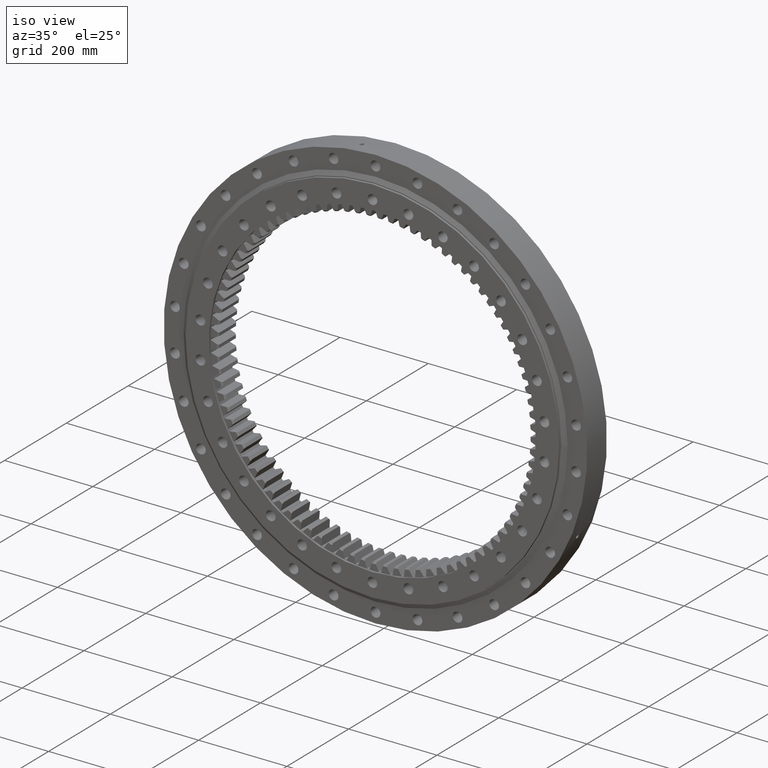
[diagram: clean part render]
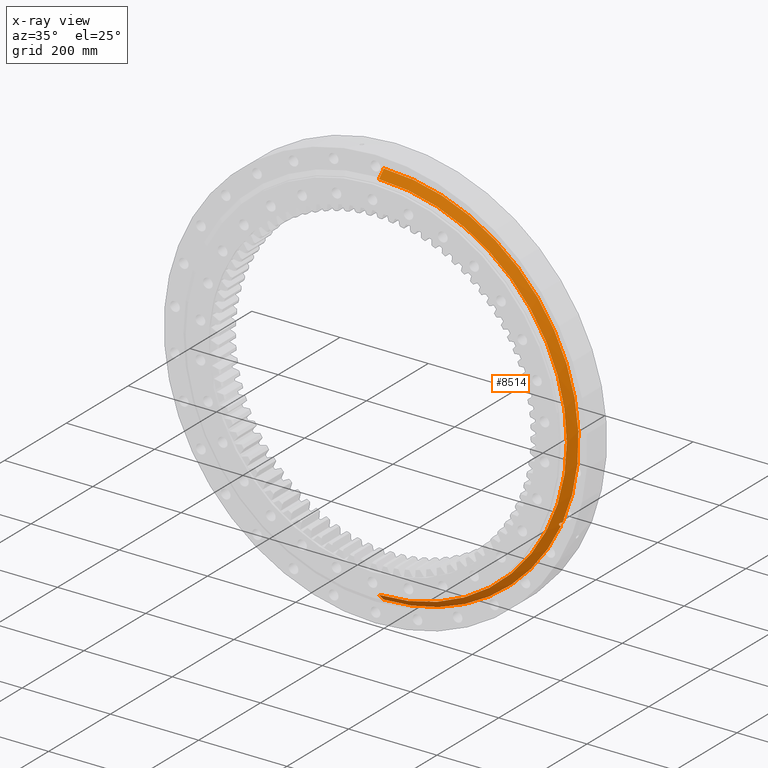
[diagram: x-ray — body ghosted, one internal face saturated and labeled with its STEP entity id]
A machine part, iso view, then the same camera in x-ray: the body is ghosted and one INTERNAL B-rep face — a face not visible from any outside direction — is saturated and labeled: STEP entity #8514.
In plain terms, the highlighted conical surface has half-angle 45 deg.
Its self-contained STEP definition (entity closure, byte-faithful):
#472 = EDGE_CURVE ( 'NONE', #6118, #21127, #11257, .T. ) ;
#822 = CARTESIAN_POINT ( 'NONE',  ( 404.6547146384413600, -1.153293002785385800, -175.3769284562168000 ) ) ;
#910 = CARTESIAN_POINT ( 'NONE',  ( 400.1321444029305200, -4.458488786449216000, -177.4609047056047200 ) ) ;
#940 = CIRCLE ( 'NONE', #4618, 425.7500000000000000 ) ;
#998 = CARTESIAN_POINT ( 'NONE',  ( 400.1736141557348100, -2.425623460447036400, -182.3265223221968100 ) ) ;
#1629 = ORIENTED_EDGE ( 'NONE', *, *, #23079, .F. ) ;
#2088 = CONICAL_SURFACE ( 'NONE', #22541, 425.7500000000000000, 0.7853981633974438400 ) ;
#2341 = CARTESIAN_POINT ( 'NONE',  ( -2.802618644233604100E-014, -16.42766952966373100, 425.7500000000000000 ) ) ;
#2840 = CARTESIAN_POINT ( 'NONE',  ( 403.4993218910917700, -2.220896289219046700, -175.3575497079782500 ) ) ;
#2923 = CARTESIAN_POINT ( 'NONE',  ( 399.9035502386784600, -4.499909138651085900, -177.8735426785048900 ) ) ;
#3004 = CARTESIAN_POINT ( 'NONE',  ( 400.6058844917232000, -1.801684949680406400, -182.8823218753153700 ) ) ;
#3398 = VERTEX_POINT ( 'NONE', #20595 ) ;
#4215 = DIRECTION ( 'NONE',  ( -1.173697223544192200E-016, 1.000000000000000000, 3.494217355385783800E-017 ) ) ;
#4602 = CARTESIAN_POINT ( 'NONE',  ( 2.450653917268358000E-014, -0.7071067811865395800, 441.4705627484770500 ) ) ;
#4618 = AXIS2_PLACEMENT_3D ( 'NONE', #19093, #7198, #21075 ) ;
#4852 = CARTESIAN_POINT ( 'NONE',  ( 402.7816439991041200, -2.826927390752906900, -175.4880106774956200 ) ) ;
#4855 = DIRECTION ( 'NONE',  ( -1.303362207392472500E-016, 0.7071067811865506800, 0.7071067811865443500 ) ) ;
#4940 = CARTESIAN_POINT ( 'NONE',  ( 399.6119724191243000, -4.466104102460079200, -178.6106869562558500 ) ) ;
#5022 = CARTESIAN_POINT ( 'NONE',  ( 401.1052377079568600, -1.152431024465705000, -183.3517216645636600 ) ) ;
#5790 = CARTESIAN_POINT ( 'NONE',  ( 8.299292658278941300E-017, -0.7071067811865241500, -2.470784786932931000E-017 ) ) ;
#6118 = VERTEX_POINT ( 'NONE', #17748 ) ;
#6369 = CARTESIAN_POINT ( 'NONE',  ( -2.442354624629642000E-014, -0.7071067811865103800, -441.4705627484770500 ) ) ;
#6831 = CARTESIAN_POINT ( 'NONE',  ( 402.0631311994134800, -3.381580333024364100, -175.7477730865368500 ) ) ;
#6915 = CARTESIAN_POINT ( 'NONE',  ( 399.4493500280369200, -4.242230791644441700, -179.5208563545533600 ) ) ;
#6996 = CARTESIAN_POINT ( 'NONE',  ( 401.4754150128149500, -0.7071067879310215500, -183.6130412409341400 ) ) ;
#7166 = B_SPLINE_CURVE_WITH_KNOTS ( 'NONE', 3,
 ( #24618, #822, #14741, #2840, #16731, #4852, #18732, #6831, #20710, #8821, #22713, #10833, #24704, #12816, #910, #14823, #2923, #16810, #4940, #18809, #6915, #20800, #8910, #22795, #10913, #24787, #12902, #998, #14910, #3004, #16895, #5022, #18898, #6996 ),
 .UNSPECIFIED., .F., .F.,
 ( 4, 2, 2, 2, 2, 2, 2, 2, 2, 2, 2, 2, 2, 2, 2, 2, 4 ),
 ( 2.818082535626348300E-007, 0.001886342166081566700, 0.002829372344995507600, 0.003772402523909448600, 0.004715432702823390100, 0.005658462881737330200, 0.006601493060651271300, 0.007073008150108257000, 0.007544523239565241800, 0.008487553418479289500, 0.009430583597393333800, 0.01037361377630738000, 0.01131664395522142600, 0.01225967413413547200, 0.01320270431304951600, 0.01414573449196356500, 0.01508876467087761000 ),
 .UNSPECIFIED. ) ;
#7198 = DIRECTION ( 'NONE',  ( 1.173697223544192200E-016, -1.000000000000000000, -3.494217355385783800E-017 ) ) ;
#8109 = LINE ( 'NONE', #23350, #24576 ) ;
#8514 = ADVANCED_FACE ( 'NONE', ( #23212 ), #2088, .F. ) ;
#8768 = EDGE_CURVE ( 'NONE', #15753, #21127, #18866, .T. ) ;
#8821 = CARTESIAN_POINT ( 'NONE',  ( 401.3552546814384500, -3.866134434448820700, -176.1562156763241700 ) ) ;
#8910 = CARTESIAN_POINT ( 'NONE',  ( 399.4685603332096100, -3.866128947850966400, -180.3938127264908100 ) ) ;
#9760 = DIRECTION ( 'NONE',  ( 5.551115123125782700E-017, -3.487360686847353000E-017, 1.000000000000000000 ) ) ;
#10492 = ORIENTED_EDGE ( 'NONE', *, *, #19668, .T. ) ;
#10833 = CARTESIAN_POINT ( 'NONE',  ( 400.6928426270049500, -4.242776017984320800, -176.7265981139118800 ) ) ;
#10913 = CARTESIAN_POINT ( 'NONE',  ( 399.6386646980305400, -3.381924308107433100, -181.1923753252742700 ) ) ;
#11121 = DIRECTION ( 'NONE',  ( 1.173697223544192200E-016, -1.000000000000000000, -3.494217355385783800E-017 ) ) ;
#11257 = CIRCLE ( 'NONE', #11822, 441.4705627484770500 ) ;
#11314 = ORIENTED_EDGE ( 'NONE', *, *, #16501, .T. ) ;
#11454 = DIRECTION ( 'NONE',  ( -1.222452380498867200E-016, 0.7071067811865506800, -0.7071067811865443500 ) ) ;
#11822 = AXIS2_PLACEMENT_3D ( 'NONE', #5790, #18021, #9760 ) ;
#12816 = CARTESIAN_POINT ( 'NONE',  ( 400.2186869373808200, -4.433396207380443600, -177.3275907095815300 ) ) ;
#12902 = CARTESIAN_POINT ( 'NONE',  ( 399.9271819992243900, -2.825745717743668000, -181.9021226976239500 ) ) ;
#14073 = EDGE_CURVE ( 'NONE', #17421, #3398, #21318, .T. ) ;
#14118 = CARTESIAN_POINT ( 'NONE',  ( -2.306465393568883100E-014, -16.42766952966370300, -425.7500000000000000 ) ) ;
#14741 = CARTESIAN_POINT ( 'NONE',  ( 404.2032523722281800, -1.588130588674432600, -175.3251702979299300 ) ) ;
#14823 = CARTESIAN_POINT ( 'NONE',  ( 399.9748839174524700, -4.491595976464693300, -177.7335525739170500 ) ) ;
#14910 = CARTESIAN_POINT ( 'NONE',  ( 400.3100992440754500, -2.220517897551127300, -182.5215884890133700 ) ) ;
#15363 = ORIENTED_EDGE ( 'NONE', *, *, #8768, .T. ) ;
#15753 = VERTEX_POINT ( 'NONE', #2341 ) ;
#16099 = CARTESIAN_POINT ( 'NONE',  ( 1.928111011626782900E-015, -16.42766952966371700, -5.740184797909317300E-016 ) ) ;
#16501 = EDGE_CURVE ( 'NONE', #17340, #15753, #940, .T. ) ;
#16731 = CARTESIAN_POINT ( 'NONE',  ( 403.2594077000664500, -2.429033074130508800, -175.3873809087940300 ) ) ;
#16810 = CARTESIAN_POINT ( 'NONE',  ( 399.7113887821202500, -4.500179526211548300, -178.3044864382961000 ) ) ;
#16895 = CARTESIAN_POINT ( 'NONE',  ( 400.7652200895069500, -1.587943729933286600, -183.0479429068790600 ) ) ;
#17340 = VERTEX_POINT ( 'NONE', #14118 ) ;
#17421 = VERTEX_POINT ( 'NONE', #6369 ) ;
#17470 = AXIS2_PLACEMENT_3D ( 'NONE', #23008, #11121, #25005 ) ;
#17748 = CARTESIAN_POINT ( 'NONE',  ( 405.0905693707808300, -0.7071067845146423700, -175.4932716014352500 ) ) ;
#18021 = DIRECTION ( 'NONE',  ( 1.173697223544192200E-016, -1.000000000000000000, -3.494217355385783800E-017 ) ) ;
#18094 = DIRECTION ( 'NONE',  ( -5.551115123125782700E-017, 3.259609584924124000E-017, -1.000000000000000000 ) ) ;
#18254 = EDGE_LOOP ( 'NONE', ( #11314, #15363, #23252, #10492, #20268, #1629 ) ) ;
#18732 = CARTESIAN_POINT ( 'NONE',  ( 402.5424229239454200, -3.017995134885976100, -175.5586815897616500 ) ) ;
#18809 = CARTESIAN_POINT ( 'NONE',  ( 399.4820395675213300, -4.337584821750542800, -179.2153211278583500 ) ) ;
#18813 = CARTESIAN_POINT ( 'NONE',  ( -2.657735382536376100E-014, -16.42766952966373100, 425.7500000000000000 ) ) ;
#18866 = LINE ( 'NONE', #18813, #24130 ) ;
#18898 = CARTESIAN_POINT ( 'NONE',  ( 401.2863302172658000, -0.9302388580823985900, -183.4899925367896300 ) ) ;
#19093 = CARTESIAN_POINT ( 'NONE',  ( 1.928111011626782900E-015, -16.42766952966371700, -5.740184797909317300E-016 ) ) ;
#19668 = EDGE_CURVE ( 'NONE', #6118, #3398, #7166, .T. ) ;
#20268 = ORIENTED_EDGE ( 'NONE', *, *, #14073, .F. ) ;
#20595 = CARTESIAN_POINT ( 'NONE',  ( 401.4754150128149500, -0.7071067879310215500, -183.6130412409341400 ) ) ;
#20710 = CARTESIAN_POINT ( 'NONE',  ( 401.8214487454972100, -3.555057545122501500, -175.8674786778194100 ) ) ;
#20800 = CARTESIAN_POINT ( 'NONE',  ( 399.4429468811753200, -4.006664408592098600, -180.1089517961960100 ) ) ;
#21075 = DIRECTION ( 'NONE',  ( 5.551115123125782700E-017, -3.259609584924124000E-017, 1.000000000000000000 ) ) ;
#21127 = VERTEX_POINT ( 'NONE', #4602 ) ;
#21318 = CIRCLE ( 'NONE', #17470, 441.4705627484770500 ) ;
#22541 = AXIS2_PLACEMENT_3D ( 'NONE', #16099, #4215, #18094 ) ;
#22713 = CARTESIAN_POINT ( 'NONE',  ( 401.1288604504566100, -4.005365152514342800, -176.3254924712795200 ) ) ;
#22795 = CARTESIAN_POINT ( 'NONE',  ( 399.5669942757857000, -3.552340470738131200, -180.9376913054612400 ) ) ;
#23008 = CARTESIAN_POINT ( 'NONE',  ( 8.299292658278941300E-017, -0.7071067811865241500, -2.470784786932931000E-017 ) ) ;
#23079 = EDGE_CURVE ( 'NONE', #17340, #17421, #8109, .T. ) ;
#23212 = FACE_OUTER_BOUND ( 'NONE', #18254, .T. ) ;
#23252 = ORIENTED_EDGE ( 'NONE', *, *, #472, .F. ) ;
#23350 = CARTESIAN_POINT ( 'NONE',  ( -2.170576162508123500E-014, -16.42766952966370300, -425.7500000000000000 ) ) ;
#24130 = VECTOR ( 'NONE', #4855, 1000.000000000000000 ) ;
#24576 = VECTOR ( 'NONE', #11454, 1000.000000000000000 ) ;
#24618 = CARTESIAN_POINT ( 'NONE',  ( 405.0905693707808300, -0.7071067845146423700, -175.4932716014352500 ) ) ;
#24704 = CARTESIAN_POINT ( 'NONE',  ( 400.4914476099807000, -4.336393205204840800, -176.9510540851981400 ) ) ;
#24787 = CARTESIAN_POINT ( 'NONE',  ( 399.8182748755467600, -3.019339826022438900, -181.6739353807607000 ) ) ;
#25005 = DIRECTION ( 'NONE',  ( 5.551115123125782700E-017, -3.487360686847353000E-017, 1.000000000000000000 ) ) ;